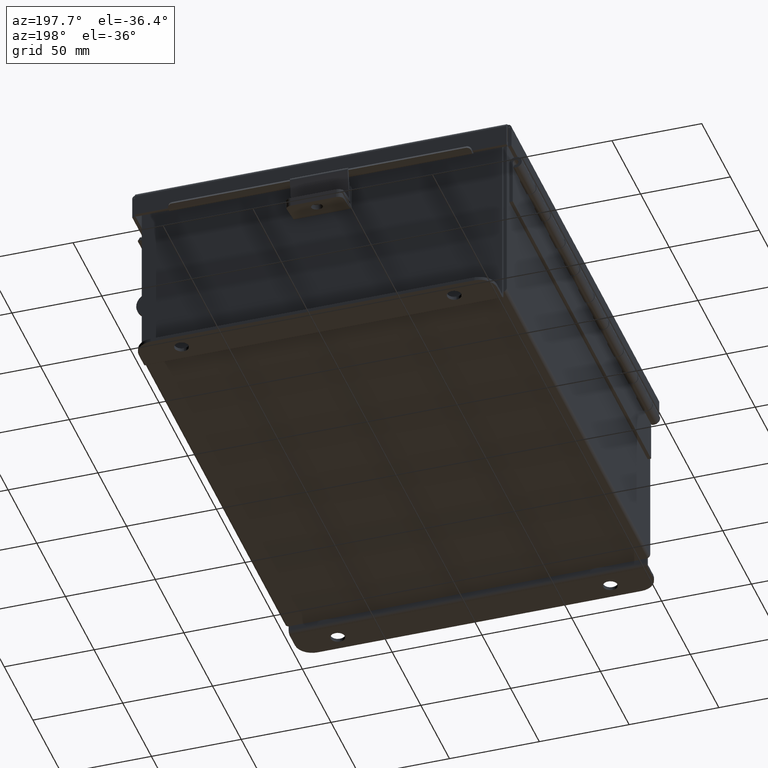
[diagram: clean part render]
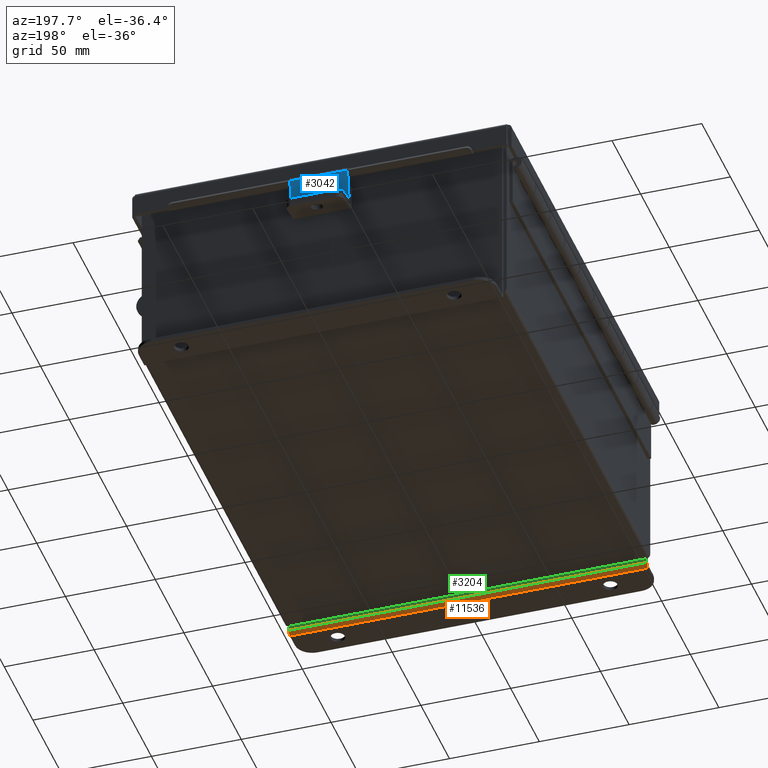
[diagram: same view with three faces highlighted in distinct colors, each labeled with its STEP entity id]
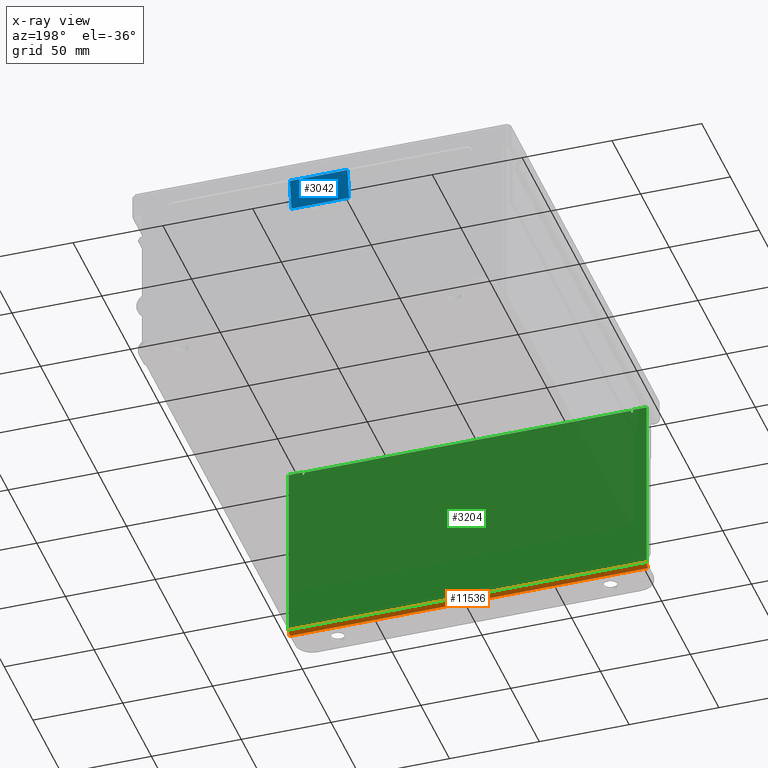
[diagram: x-ray of the same camera — body ghosted, the three highlighted faces saturated]
A machine part, auxiliary view with three faces highlighted in distinct colors.
The next image is the same camera in x-ray (body ghosted, the three faces saturated) — at least one of them is partly hidden behind the body in this view.
Their STEP definitions:

[orange] entity #11536 — the highlighted cylindrical surface (edge-blend (fillet) strip) has radius 2.2276 mm, axis along (1, 0, -0).
#642 = ORIENTED_EDGE ( 'NONE', *, *, #8051, .F. ) ;
#727 = CARTESIAN_POINT ( 'NONE',  ( 3.925300000000000900, 0.01300000000000775700, -2.099300000000001300 ) ) ;
#1164 = AXIS2_PLACEMENT_3D ( 'NONE', #3679, #11343, #16376 ) ;
#1182 = LINE ( 'NONE', #11239, #10179 ) ;
#1741 = ORIENTED_EDGE ( 'NONE', *, *, #9655, .T. ) ;
#2210 = VERTEX_POINT ( 'NONE', #3513 ) ;
#2311 = CARTESIAN_POINT ( 'NONE',  ( 3.925300000000005300, 0.01300000000000885000, -2.187000000000001200 ) ) ;
#2359 = EDGE_CURVE ( 'NONE', #6315, #12616, #3487, .T. ) ;
#2526 = CIRCLE ( 'NONE', #4429, 0.08770000000000009700 ) ;
#3487 = CIRCLE ( 'NONE', #7048, 0.08770000000000009700 ) ;
#3506 = ORIENTED_EDGE ( 'NONE', *, *, #2359, .F. ) ;
#3513 = CARTESIAN_POINT ( 'NONE',  ( -3.925299999999998700, -0.07470000000000125200, -2.099300000000001300 ) ) ;
#3578 = DIRECTION ( 'NONE',  ( 1.000000000000000000, 8.208677865577687000E-017, -0.0000000000000000000 ) ) ;
#3679 = CARTESIAN_POINT ( 'NONE',  ( -3.925299999999998700, 0.01299999999999901400, -2.099300000000001300 ) ) ;
#4429 = AXIS2_PLACEMENT_3D ( 'NONE', #13165, #5522, #14441 ) ;
#4740 = VERTEX_POINT ( 'NONE', #16496 ) ;
#4819 = FACE_OUTER_BOUND ( 'NONE', #16150, .T. ) ;
#5522 = DIRECTION ( 'NONE',  ( -1.000000000000000000, -8.208677865577687000E-017, 0.0000000000000000000 ) ) ;
#6315 = VERTEX_POINT ( 'NONE', #7601 ) ;
#7048 = AXIS2_PLACEMENT_3D ( 'NONE', #727, #9612, #12187 ) ;
#7601 = CARTESIAN_POINT ( 'NONE',  ( 3.925300000000000900, -0.07469999999999142600, -2.099300000000001300 ) ) ;
#7853 = CYLINDRICAL_SURFACE ( 'NONE', #1164, 0.08770000000000000000 ) ;
#8051 = EDGE_CURVE ( 'NONE', #4740, #2210, #2526, .T. ) ;
#9612 = DIRECTION ( 'NONE',  ( 1.000000000000000000, 8.208677865577687000E-017, -0.0000000000000000000 ) ) ;
#9655 = EDGE_CURVE ( 'NONE', #4740, #12616, #13606, .T. ) ;
#10179 = VECTOR ( 'NONE', #3578, 39.37007874015748100 ) ;
#11238 = DIRECTION ( 'NONE',  ( 1.000000000000000000, 3.479795166820746500E-017, -0.0000000000000000000 ) ) ;
#11239 = CARTESIAN_POINT ( 'NONE',  ( -3.925299999999998700, -0.07470000000000125200, -2.099300000000001300 ) ) ;
#11343 = DIRECTION ( 'NONE',  ( -1.000000000000000000, -8.208677865577687000E-017, 0.0000000000000000000 ) ) ;
#11536 = ADVANCED_FACE ( 'NONE', ( #4819 ), #7853, .T. ) ;
#12187 = DIRECTION ( 'NONE',  ( 0.0000000000000000000, -1.000000000000000000, 0.0000000000000000000 ) ) ;
#12616 = VERTEX_POINT ( 'NONE', #14911 ) ;
#13165 = CARTESIAN_POINT ( 'NONE',  ( -3.925299999999998700, 0.01299999999999901400, -2.099300000000001300 ) ) ;
#13606 = LINE ( 'NONE', #2311, #14432 ) ;
#13778 = ORIENTED_EDGE ( 'NONE', *, *, #13985, .F. ) ;
#13985 = EDGE_CURVE ( 'NONE', #2210, #6315, #1182, .T. ) ;
#14432 = VECTOR ( 'NONE', #11238, 39.37007874015748100 ) ;
#14441 = DIRECTION ( 'NONE',  ( 0.0000000000000000000, -1.000000000000000000, 0.0000000000000000000 ) ) ;
#14911 = CARTESIAN_POINT ( 'NONE',  ( 3.925300000000005300, 0.01300000000000775700, -2.187000000000001200 ) ) ;
#16150 = EDGE_LOOP ( 'NONE', ( #13778, #642, #1741, #3506 ) ) ;
#16376 = DIRECTION ( 'NONE',  ( 0.0000000000000000000, -3.334014886794506100E-015, -1.000000000000000000 ) ) ;
#16496 = CARTESIAN_POINT ( 'NONE',  ( -3.925299999999994200, 0.01300000000000010700, -2.187000000000001200 ) ) ;

[blue] entity #3042 — the highlighted planar face has unit normal (-0, -0.9877, 0.1564).
#417 = DIRECTION ( 'NONE',  ( 0.0000000000000000000, 0.0000000000000000000, -1.000000000000000000 ) ) ;
#471 = DIRECTION ( 'NONE',  ( -1.000000000000000000, 0.0000000000000000000, -0.0000000000000000000 ) ) ;
#1234 = VERTEX_POINT ( 'NONE', #2371 ) ;
#1722 = LINE ( 'NONE', #12180, #15285 ) ;
#1758 = EDGE_CURVE ( 'NONE', #5036, #1234, #1722, .T. ) ;
#1988 = ORIENTED_EDGE ( 'NONE', *, *, #10914, .T. ) ;
#2371 = CARTESIAN_POINT ( 'NONE',  ( -0.6325000000000000600, -0.3344999999999998500, -3.734948428837859800E-017 ) ) ;
#3042 = ADVANCED_FACE ( 'NONE', ( #5015 ), #12546, .F. ) ;
#4086 = CARTESIAN_POINT ( 'NONE',  ( 0.6325000000000000600, 0.4175000000000001500, 0.0000000000000000000 ) ) ;
#4136 = DIRECTION ( 'NONE',  ( -1.000000000000000000, -0.0000000000000000000, -0.0000000000000000000 ) ) ;
#4175 = ORIENTED_EDGE ( 'NONE', *, *, #4314, .T. ) ;
#4314 = EDGE_CURVE ( 'NONE', #16292, #14382, #14794, .T. ) ;
#4655 = CARTESIAN_POINT ( 'NONE',  ( -0.6325000000000000600, 0.3243453803252444000, 0.0000000000000000000 ) ) ;
#4872 = ORIENTED_EDGE ( 'NONE', *, *, #10474, .T. ) ;
#5015 = FACE_OUTER_BOUND ( 'NONE', #9999, .T. ) ;
#5036 = VERTEX_POINT ( 'NONE', #6011 ) ;
#6011 = CARTESIAN_POINT ( 'NONE',  ( 0.6325000000000000600, -0.3344999999999998500, -3.734948428837859800E-017 ) ) ;
#6695 = DIRECTION ( 'NONE',  ( -0.0000000000000000000, -1.000000000000000000, -0.0000000000000000000 ) ) ;
#7730 = DIRECTION ( 'NONE',  ( 0.0000000000000000000, 1.000000000000000000, 0.0000000000000000000 ) ) ;
#8379 = CARTESIAN_POINT ( 'NONE',  ( 0.6324999999999998400, 0.3243453803252444000, -1.024442997624098700E-016 ) ) ;
#8681 = VECTOR ( 'NONE', #6695, 39.37007874015748100 ) ;
#9068 = VECTOR ( 'NONE', #7730, 39.37007874015748100 ) ;
#9290 = ORIENTED_EDGE ( 'NONE', *, *, #1758, .F. ) ;
#9466 = LINE ( 'NONE', #11514, #9068 ) ;
#9999 = EDGE_LOOP ( 'NONE', ( #4175, #4872, #9290, #1988 ) ) ;
#10474 = EDGE_CURVE ( 'NONE', #14382, #1234, #12085, .T. ) ;
#10914 = EDGE_CURVE ( 'NONE', #5036, #16292, #9466, .T. ) ;
#11427 = VECTOR ( 'NONE', #4136, 39.37007874015748100 ) ;
#11514 = CARTESIAN_POINT ( 'NONE',  ( 0.6325000000000000600, -0.4174999999999998700, 0.0000000000000000000 ) ) ;
#12085 = LINE ( 'NONE', #14301, #8681 ) ;
#12180 = CARTESIAN_POINT ( 'NONE',  ( 0.6325000000000000600, -0.3344999999999998500, -3.734948428837859800E-017 ) ) ;
#12546 = PLANE ( 'NONE',  #14055 ) ;
#13963 = DIRECTION ( 'NONE',  ( -1.000000000000000000, 0.0000000000000000000, 0.0000000000000000000 ) ) ;
#14055 = AXIS2_PLACEMENT_3D ( 'NONE', #4086, #417, #471 ) ;
#14301 = CARTESIAN_POINT ( 'NONE',  ( -0.6325000000000000600, -0.4174999999999998700, 0.0000000000000000000 ) ) ;
#14382 = VERTEX_POINT ( 'NONE', #4655 ) ;
#14794 = LINE ( 'NONE', #15851, #11427 ) ;
#15285 = VECTOR ( 'NONE', #13963, 39.37007874015748100 ) ;
#15851 = CARTESIAN_POINT ( 'NONE',  ( 0.6325000000000000600, 0.3243453803252444000, -1.024442997624098700E-016 ) ) ;
#16292 = VERTEX_POINT ( 'NONE', #8379 ) ;

[green] entity #3204 — the highlighted planar face has unit normal (-0, 1, -0).
#104 = VECTOR ( 'NONE', #15562, 39.37007874015748100 ) ;
#524 = LINE ( 'NONE', #5128, #4304 ) ;
#637 = VERTEX_POINT ( 'NONE', #6398 ) ;
#714 = VERTEX_POINT ( 'NONE', #6417 ) ;
#885 = DIRECTION ( 'NONE',  ( 1.000000000000000000, 4.910036603141682400E-031, 0.0000000000000000000 ) ) ;
#1089 = VECTOR ( 'NONE', #13104, 39.37007874015748100 ) ;
#1182 = LINE ( 'NONE', #11239, #10179 ) ;
#1259 = ORIENTED_EDGE ( 'NONE', *, *, #3375, .F. ) ;
#1274 = LINE ( 'NONE', #12592, #8082 ) ;
#1517 = CARTESIAN_POINT ( 'NONE',  ( -3.600974999999998700, -0.07469999999999907300, 1.874949999999997900 ) ) ;
#1609 = DIRECTION ( 'NONE',  ( -4.910036603141682400E-031, -1.000000000000000000, 0.0000000000000000000 ) ) ;
#2210 = VERTEX_POINT ( 'NONE', #3513 ) ;
#2245 = FACE_OUTER_BOUND ( 'NONE', #9807, .T. ) ;
#2524 = CARTESIAN_POINT ( 'NONE',  ( -3.582299999999998700, -0.07470000000000015500, 1.874949999999998600 ) ) ;
#2590 = ORIENTED_EDGE ( 'NONE', *, *, #9081, .F. ) ;
#2638 = EDGE_CURVE ( 'NONE', #6557, #15492, #4633, .T. ) ;
#2815 = DIRECTION ( 'NONE',  ( 0.0000000000000000000, 0.0000000000000000000, -1.000000000000000000 ) ) ;
#2894 = CARTESIAN_POINT ( 'NONE',  ( 0.0000000000000000000, -0.07470000000000015500, 0.0000000000000000000 ) ) ;
#3204 = ADVANCED_FACE ( 'NONE', ( #2245 ), #5394, .T. ) ;
#3375 = EDGE_CURVE ( 'NONE', #714, #6557, #10027, .T. ) ;
#3510 = EDGE_CURVE ( 'NONE', #9843, #714, #15589, .T. ) ;
#3513 = CARTESIAN_POINT ( 'NONE',  ( -3.925299999999998700, -0.07470000000000125200, -2.099300000000001300 ) ) ;
#3578 = DIRECTION ( 'NONE',  ( 1.000000000000000000, 8.208677865577687000E-017, -0.0000000000000000000 ) ) ;
#4019 = VECTOR ( 'NONE', #885, 39.37007874015748100 ) ;
#4304 = VECTOR ( 'NONE', #14035, 39.37007874015748100 ) ;
#4352 = ORIENTED_EDGE ( 'NONE', *, *, #9311, .F. ) ;
#4633 = LINE ( 'NONE', #9448, #1089 ) ;
#4912 = DIRECTION ( 'NONE',  ( 0.0000000000000000000, 1.593804067803109400E-014, -1.000000000000000000 ) ) ;
#5128 = CARTESIAN_POINT ( 'NONE',  ( -3.582299999999994300, -0.07469999999999907300, 1.912299999999998600 ) ) ;
#5394 = PLANE ( 'NONE',  #10359 ) ;
#5419 = VECTOR ( 'NONE', #14523, 39.37007874015748100 ) ;
#5508 = ORIENTED_EDGE ( 'NONE', *, *, #3510, .F. ) ;
#5544 = ORIENTED_EDGE ( 'NONE', *, *, #12044, .F. ) ;
#5545 = CARTESIAN_POINT ( 'NONE',  ( 3.600975000000000900, -0.07469999999999797600, 1.874949999999997500 ) ) ;
#5750 = VECTOR ( 'NONE', #10485, 39.37007874015748100 ) ;
#5756 = EDGE_CURVE ( 'NONE', #637, #6318, #12177, .T. ) ;
#5987 = VERTEX_POINT ( 'NONE', #9610 ) ;
#6315 = VERTEX_POINT ( 'NONE', #7601 ) ;
#6318 = VERTEX_POINT ( 'NONE', #2524 ) ;
#6342 = VECTOR ( 'NONE', #12158, 39.37007874015748100 ) ;
#6398 = CARTESIAN_POINT ( 'NONE',  ( -3.619649999999998700, -0.07470000000000015500, 1.874949999999997900 ) ) ;
#6417 = CARTESIAN_POINT ( 'NONE',  ( 3.582300000000000900, -0.07470000000000015500, 1.874949999999997500 ) ) ;
#6557 = VERTEX_POINT ( 'NONE', #13210 ) ;
#6570 = DIRECTION ( 'NONE',  ( -4.910036603141682400E-031, -1.000000000000000000, -0.0000000000000000000 ) ) ;
#6638 = CARTESIAN_POINT ( 'NONE',  ( -3.925299999999994200, -0.07470000000000015500, 1.925299999999998700 ) ) ;
#6661 = CARTESIAN_POINT ( 'NONE',  ( 3.582300000000004900, -0.07470000000000015500, 1.912299999999997400 ) ) ;
#7460 = ORIENTED_EDGE ( 'NONE', *, *, #14765, .F. ) ;
#7601 = CARTESIAN_POINT ( 'NONE',  ( 3.925300000000000900, -0.07469999999999142600, -2.099300000000001300 ) ) ;
#7703 = EDGE_CURVE ( 'NONE', #15256, #9843, #524, .T. ) ;
#7715 = ORIENTED_EDGE ( 'NONE', *, *, #15009, .F. ) ;
#8082 = VECTOR ( 'NONE', #4912, 39.37007874015748100 ) ;
#8528 = CARTESIAN_POINT ( 'NONE',  ( -3.925299999999994200, -0.07470000000000015500, 1.925299999999998700 ) ) ;
#8572 = ORIENTED_EDGE ( 'NONE', *, *, #9839, .F. ) ;
#8739 = CARTESIAN_POINT ( 'NONE',  ( -3.582299999999994300, -0.07470000000000015500, 1.912299999999998600 ) ) ;
#8852 = ORIENTED_EDGE ( 'NONE', *, *, #7703, .F. ) ;
#9081 = EDGE_CURVE ( 'NONE', #10776, #637, #1274, .T. ) ;
#9177 = CARTESIAN_POINT ( 'NONE',  ( -3.582299999999998700, -0.07469999999999907300, 1.874949999999998600 ) ) ;
#9311 = EDGE_CURVE ( 'NONE', #6318, #15256, #11652, .T. ) ;
#9448 = CARTESIAN_POINT ( 'NONE',  ( 3.619650000000000900, -0.07469999999999797600, 1.874949999999997500 ) ) ;
#9592 = CARTESIAN_POINT ( 'NONE',  ( 3.925300000000005300, -0.07470000000000015500, 1.925299999999998700 ) ) ;
#9610 = CARTESIAN_POINT ( 'NONE',  ( 3.925300000000005300, -0.07470000000000015500, 1.925299999999998700 ) ) ;
#9738 = LINE ( 'NONE', #9592, #6342 ) ;
#9807 = EDGE_LOOP ( 'NONE', ( #14128, #2590, #7460, #8572, #11778, #7715, #5544, #10707, #1259, #5508, #8852, #4352 ) ) ;
#9839 = EDGE_CURVE ( 'NONE', #2210, #14754, #10301, .T. ) ;
#9843 = VERTEX_POINT ( 'NONE', #6661 ) ;
#10027 = CIRCLE ( 'NONE', #12905, 0.01867500000000003900 ) ;
#10179 = VECTOR ( 'NONE', #3578, 39.37007874015748100 ) ;
#10191 = AXIS2_PLACEMENT_3D ( 'NONE', #1517, #10451, #2815 ) ;
#10301 = LINE ( 'NONE', #13006, #104 ) ;
#10359 = AXIS2_PLACEMENT_3D ( 'NONE', #2894, #6570, #15486 ) ;
#10451 = DIRECTION ( 'NONE',  ( -4.910036603141682400E-031, -1.000000000000000000, 0.0000000000000000000 ) ) ;
#10460 = DIRECTION ( 'NONE',  ( 0.0000000000000000000, 0.0000000000000000000, 1.000000000000000000 ) ) ;
#10476 = CARTESIAN_POINT ( 'NONE',  ( 3.582300000000004900, -0.07469999999999797600, 1.912299999999997400 ) ) ;
#10485 = DIRECTION ( 'NONE',  ( 1.000000000000000000, 4.910036603141682400E-031, 0.0000000000000000000 ) ) ;
#10528 = DIRECTION ( 'NONE',  ( 0.0000000000000000000, 0.0000000000000000000, -1.000000000000000000 ) ) ;
#10707 = ORIENTED_EDGE ( 'NONE', *, *, #2638, .F. ) ;
#10776 = VERTEX_POINT ( 'NONE', #12585 ) ;
#11239 = CARTESIAN_POINT ( 'NONE',  ( -3.925299999999998700, -0.07470000000000125200, -2.099300000000001300 ) ) ;
#11652 = LINE ( 'NONE', #9177, #15036 ) ;
#11778 = ORIENTED_EDGE ( 'NONE', *, *, #13985, .T. ) ;
#12044 = EDGE_CURVE ( 'NONE', #15492, #5987, #14189, .T. ) ;
#12158 = DIRECTION ( 'NONE',  ( 0.0000000000000000000, 0.0000000000000000000, -1.000000000000000000 ) ) ;
#12177 = CIRCLE ( 'NONE', #10191, 0.01867500000000003900 ) ;
#12548 = LINE ( 'NONE', #12980, #5750 ) ;
#12585 = CARTESIAN_POINT ( 'NONE',  ( -3.619649999999994300, -0.07470000000000015500, 1.925299999999998700 ) ) ;
#12592 = CARTESIAN_POINT ( 'NONE',  ( -3.619649999999994300, -0.07470000000000015500, 1.925299999999998700 ) ) ;
#12905 = AXIS2_PLACEMENT_3D ( 'NONE', #5545, #1609, #10528 ) ;
#12980 = CARTESIAN_POINT ( 'NONE',  ( -3.925299999999994200, -0.07470000000000015500, 1.925299999999998700 ) ) ;
#13006 = CARTESIAN_POINT ( 'NONE',  ( -3.925299999999994200, -0.07470000000000015500, 1.925299999999998700 ) ) ;
#13104 = DIRECTION ( 'NONE',  ( 2.170286390199978800E-014, -1.593804067803109400E-014, 1.000000000000000000 ) ) ;
#13210 = CARTESIAN_POINT ( 'NONE',  ( 3.619650000000000900, -0.07470000000000015500, 1.874949999999997500 ) ) ;
#13985 = EDGE_CURVE ( 'NONE', #2210, #6315, #1182, .T. ) ;
#14035 = DIRECTION ( 'NONE',  ( 1.000000000000000000, 4.910036603141682400E-031, -0.0000000000000000000 ) ) ;
#14128 = ORIENTED_EDGE ( 'NONE', *, *, #5756, .F. ) ;
#14169 = CARTESIAN_POINT ( 'NONE',  ( 3.619650000000006300, -0.07470000000000015500, 1.925299999999998700 ) ) ;
#14189 = LINE ( 'NONE', #8528, #4019 ) ;
#14523 = DIRECTION ( 'NONE',  ( 0.0000000000000000000, 0.0000000000000000000, -1.000000000000000000 ) ) ;
#14754 = VERTEX_POINT ( 'NONE', #6638 ) ;
#14765 = EDGE_CURVE ( 'NONE', #14754, #10776, #12548, .T. ) ;
#15009 = EDGE_CURVE ( 'NONE', #5987, #6315, #9738, .T. ) ;
#15036 = VECTOR ( 'NONE', #10460, 39.37007874015748100 ) ;
#15256 = VERTEX_POINT ( 'NONE', #8739 ) ;
#15486 = DIRECTION ( 'NONE',  ( 0.0000000000000000000, 0.0000000000000000000, -1.000000000000000000 ) ) ;
#15492 = VERTEX_POINT ( 'NONE', #14169 ) ;
#15562 = DIRECTION ( 'NONE',  ( 0.0000000000000000000, 0.0000000000000000000, 1.000000000000000000 ) ) ;
#15589 = LINE ( 'NONE', #10476, #5419 ) ;